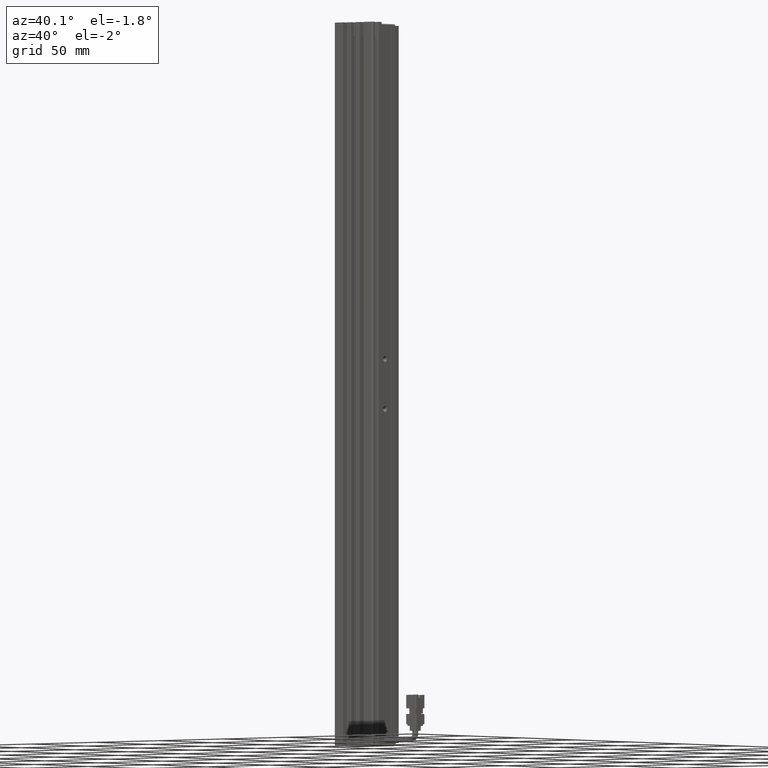
[diagram: clean part render]
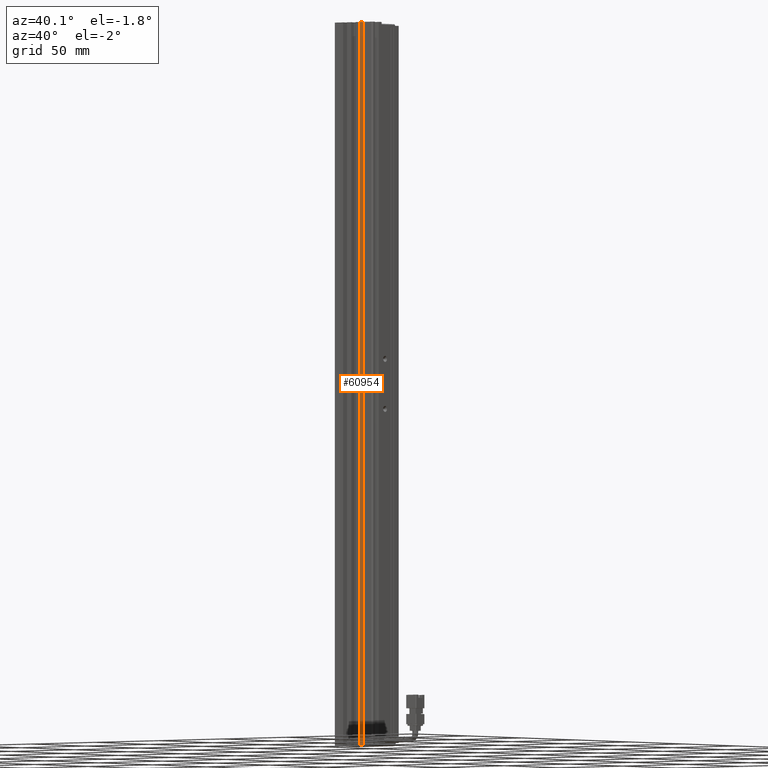
[diagram: same view with one face highlighted and labeled with its STEP entity id]
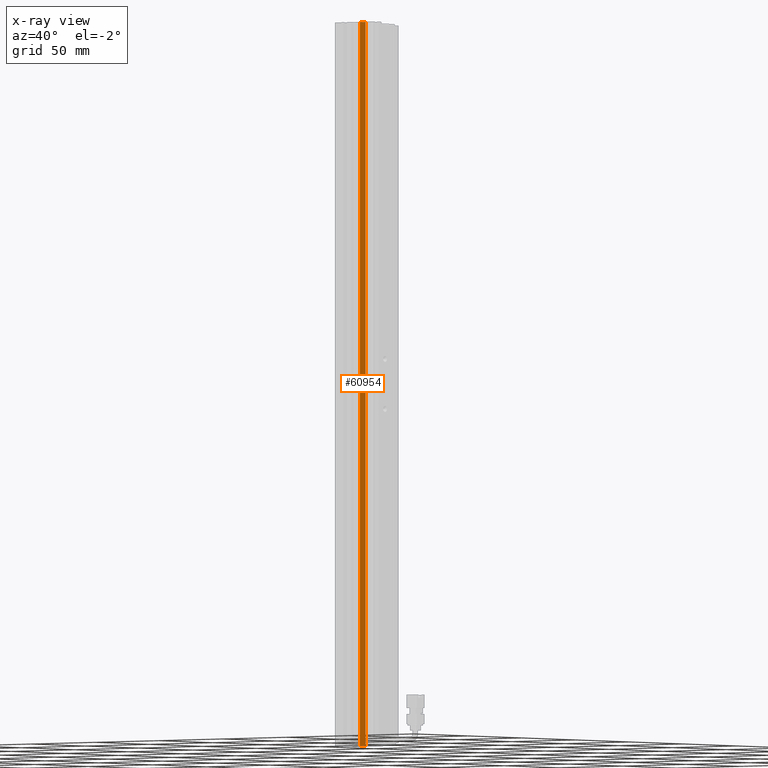
[diagram: x-ray of the same camera — body ghosted, the highlighted face saturated]
A machine part, auxiliary view. The second image highlights one B-rep face of the part: STEP entity #60954.
The next image is the same camera in x-ray: the body ghosted, the highlighted face saturated — about 0% of this face is hidden behind the body in this view.
In plain terms, the highlighted planar face has unit normal (-1, -0, 0).
Its self-contained STEP definition (entity closure, byte-faithful):
#5542 = CARTESIAN_POINT ( 'NONE',  ( 45.92537974683541800, 16.19594479660386800, -332.0000000000000000 ) ) ;
#7346 = EDGE_CURVE ( 'NONE', #8609, #74160, #70196, .T. ) ;
#8609 = VERTEX_POINT ( 'NONE', #57653 ) ;
#11059 = EDGE_CURVE ( 'NONE', #72838, #20313, #67749, .T. ) ;
#18681 = DIRECTION ( 'NONE',  ( -1.000000000000000000, -3.154042683594196600E-016, 0.0000000000000000000 ) ) ;
#19034 = ORIENTED_EDGE ( 'NONE', *, *, #11059, .F. ) ;
#20313 = VERTEX_POINT ( 'NONE', #5542 ) ;
#20345 = ORIENTED_EDGE ( 'NONE', *, *, #30634, .F. ) ;
#20387 = ORIENTED_EDGE ( 'NONE', *, *, #50400, .T. ) ;
#21301 = VECTOR ( 'NONE', #59780, 1000.000000000000000 ) ;
#22826 = CARTESIAN_POINT ( 'NONE',  ( 45.92537974683541800, 7.083797468354437600, 102.0000000000000000 ) ) ;
#23285 = CARTESIAN_POINT ( 'NONE',  ( 45.92537974683541800, 16.19594479660386800, 102.0000000000000000 ) ) ;
#28142 = CARTESIAN_POINT ( 'NONE',  ( 45.92537974683541800, 16.19594479660386800, 102.0000000000000000 ) ) ;
#30634 = EDGE_CURVE ( 'NONE', #74160, #72838, #30978, .T. ) ;
#30978 = LINE ( 'NONE', #22826, #47233 ) ;
#33880 = LINE ( 'NONE', #77948, #66380 ) ;
#34324 = DIRECTION ( 'NONE',  ( 0.0000000000000000000, -0.0000000000000000000, -1.000000000000000000 ) ) ;
#36068 = AXIS2_PLACEMENT_3D ( 'NONE', #55374, #18681, #61557 ) ;
#41358 = DIRECTION ( 'NONE',  ( 0.0000000000000000000, 1.000000000000000000, -0.0000000000000000000 ) ) ;
#45889 = CARTESIAN_POINT ( 'NONE',  ( 45.92537974683541800, 10.69594479660386800, 102.0000000000000000 ) ) ;
#47233 = VECTOR ( 'NONE', #59512, 1000.000000000000000 ) ;
#50400 = EDGE_CURVE ( 'NONE', #8609, #20313, #33880, .T. ) ;
#51448 = VECTOR ( 'NONE', #34324, 1000.000000000000000 ) ;
#55374 = CARTESIAN_POINT ( 'NONE',  ( 45.92537974683541800, 7.083797468354439400, 102.0000000000000000 ) ) ;
#57653 = CARTESIAN_POINT ( 'NONE',  ( 45.92537974683541800, 10.69594479660386800, -332.0000000000000000 ) ) ;
#59512 = DIRECTION ( 'NONE',  ( 0.0000000000000000000, 1.000000000000000000, -0.0000000000000000000 ) ) ;
#59780 = DIRECTION ( 'NONE',  ( 0.0000000000000000000, 0.0000000000000000000, 1.000000000000000000 ) ) ;
#60954 = ADVANCED_FACE ( 'NONE', ( #62516 ), #61301, .F. ) ;
#61301 = PLANE ( 'NONE',  #36068 ) ;
#61557 = DIRECTION ( 'NONE',  ( 3.154042683594196600E-016, -1.000000000000000000, 0.0000000000000000000 ) ) ;
#62016 = ORIENTED_EDGE ( 'NONE', *, *, #7346, .F. ) ;
#62516 = FACE_OUTER_BOUND ( 'NONE', #70706, .T. ) ;
#65950 = CARTESIAN_POINT ( 'NONE',  ( 45.92537974683541800, 10.69594479660386800, 102.0000000000000000 ) ) ;
#66380 = VECTOR ( 'NONE', #41358, 1000.000000000000000 ) ;
#67749 = LINE ( 'NONE', #28142, #51448 ) ;
#70196 = LINE ( 'NONE', #65950, #21301 ) ;
#70706 = EDGE_LOOP ( 'NONE', ( #19034, #20345, #62016, #20387 ) ) ;
#72838 = VERTEX_POINT ( 'NONE', #23285 ) ;
#74160 = VERTEX_POINT ( 'NONE', #45889 ) ;
#77948 = CARTESIAN_POINT ( 'NONE',  ( 45.92537974683541800, 7.083797468354437600, -332.0000000000000000 ) ) ;